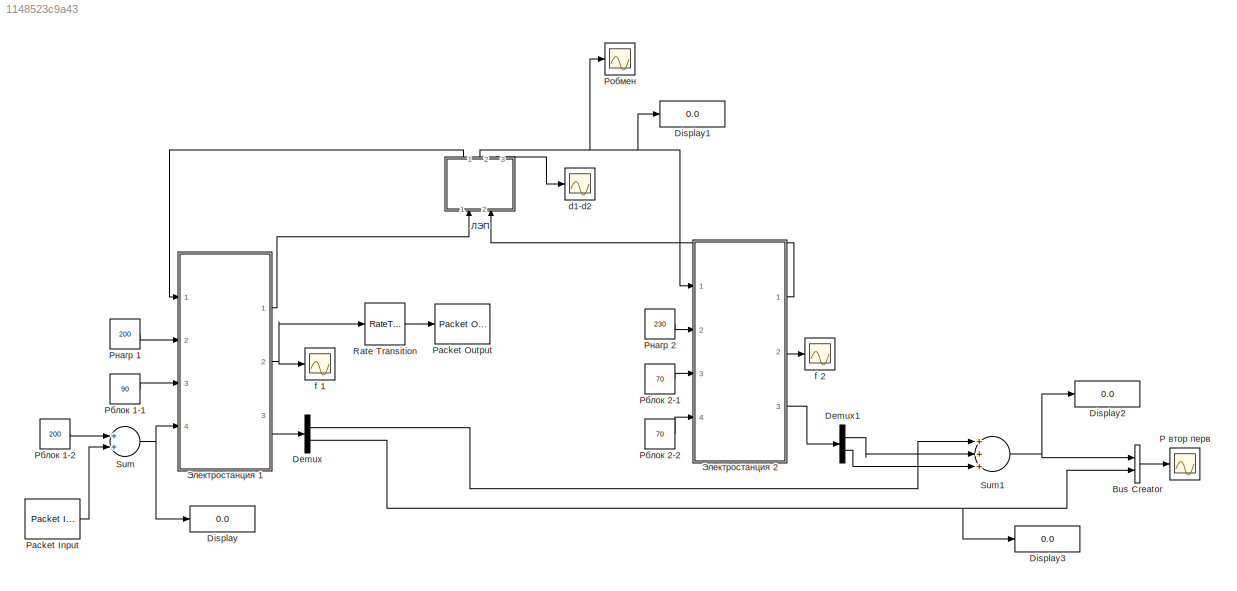
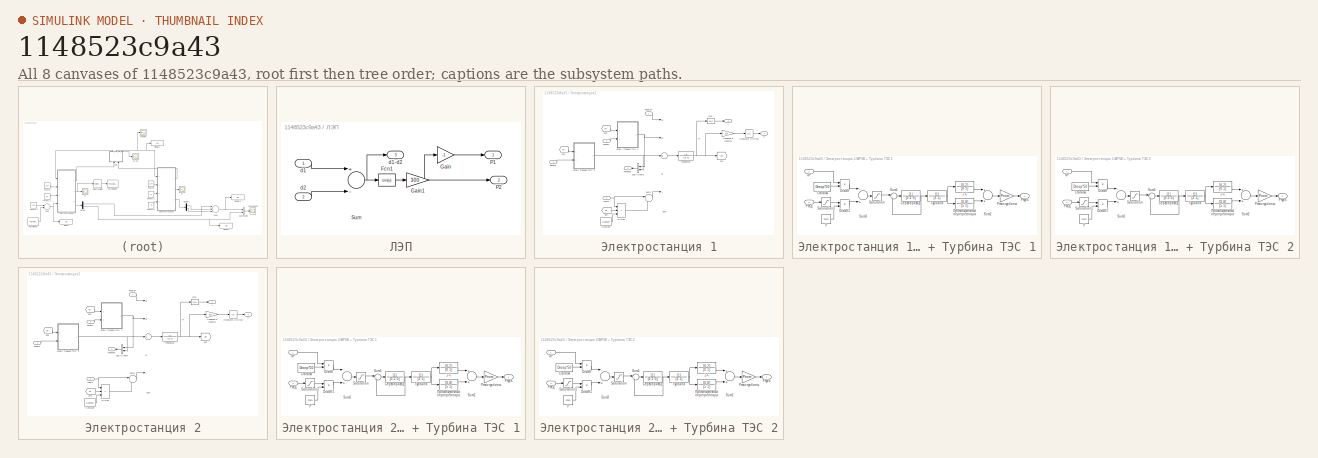
[diagram: thumbnail index - all 8 canvases of the model, root first then tree order]
MODEL slx_1148523c9a43
KIND model
CONFIG AbsTol = auto
CONFIG FixedStep = 0.01
CONFIG MaxStep = auto
CONFIG MinStep = auto
CONFIG RelTol = 1e-3
CONFIG SampleTimeConstraint = Unconstrained
CONFIG Solver = ode4
CONFIG SolverMode = Auto
CONFIG SolverName = ode4
CONFIG StartTime = 0.0
CONFIG StopTime = inf
BLOCK [BusCreator] Bus Creator
  DisplayOption = bar
  InheritFromInputs = on
  Inputs = 2
  Ports = [2, 1]
BLOCK [Demux] Demux
  DisplayOption = bar
  Outputs = 2
  Ports = [1, 2]
BLOCK [Demux] Demux1
  DisplayOption = bar
  Outputs = 2
  Ports = [1, 2]
BLOCK [Display] Display
  Decimation = 1
  Ports = [1]
BLOCK [Display] Display1
  Decimation = 1
  Ports = [1]
BLOCK [Display] Display2
  Decimation = 1
  Ports = [1]
BLOCK [Display] Display3
  Decimation = 1
  Ports = [1]
BLOCK [Scope] P втор перв
  Ports = [1]
  ScopeSpecificationString = Simulink.scopes.TimeScopeBlockCfg('CurrentConfiguration', extmgr.ConfigurationSet(extmgr.Configuration('Core','General UI',true),extmgr.Configuration('Core','Source UI',true),extmgr.Configuration('Sources','WiredSimulink',true,'DataLoggingVariableName','ScopeData1'),extmgr.Configuration('Visuals','Time Domain',true,'SerializedDisplays',{struct('MinYLimReal','169.2293','MaxYLimReal','244.84251','YL...<+1509ch>
BLOCK [Reference] Packet Input  REF=sldrtlib/Packet Input
  AttributesFormatString = Standard Devices\nUDP Protocol [2EE0h]
  Ports = [0, 1]
  SourceBlock = sldrtlib/Packet Input
  SourceType = Simulink Desktop Real-Time Packet Input
BLOCK [Reference] Packet Output  REF=sldrtlib/Packet Output
  AttributesFormatString = Standard Devices\nUDP Protocol [2EE0h]
  Ports = [1]
  SourceBlock = sldrtlib/Packet Output
  SourceType = Simulink Desktop Real-Time Packet Output
BLOCK [Constant] Pблок 1-1
  Value = 90
BLOCK [Constant] Pблок 1-2
  Value = 200
BLOCK [Constant] Pблок 2-1
  Value = 70
BLOCK [Constant] Pблок 2-2
  Value = 70
BLOCK [Constant] Pнагр 1
  Value = 200
BLOCK [Constant] Pнагр 2
  Value = 230
BLOCK [Scope] Pобмен
  Ports = [1]
  ScopeSpecificationString = Simulink.scopes.TimeScopeBlockCfg('CurrentConfiguration', extmgr.ConfigurationSet(extmgr.Configuration('Core','General UI',true),extmgr.Configuration('Core','Source UI',true),extmgr.Configuration('Sources','WiredSimulink',true,'DataLoggingVariableName','ScopeData5'),extmgr.Configuration('Visuals','Time Domain',true,'SerializedDisplays',{struct('MinYLimReal','-8.47412','MaxYLimReal','-8.05624','YLa...<+1492ch>
BLOCK [RateTransition] Rate Transition
  OutPortSampleTime = 1
BLOCK [Sum] Sum
  InputSameDT = off
  OutDataTypeStr = Inherit: Inherit via internal rule
  Ports = [2, 1]
  SaturateOnIntegerOverflow = off
BLOCK [Sum] Sum1
  InputSameDT = off
  Inputs = +++
  OutDataTypeStr = Inherit: Inherit via internal rule
  Ports = [3, 1]
  SaturateOnIntegerOverflow = off
BLOCK [Scope] d1-d2
  Ports = [1]
  ScopeSpecificationString = Simulink.scopes.TimeScopeBlockCfg('CurrentConfiguration', extmgr.ConfigurationSet(extmgr.Configuration('Core','General UI',true),extmgr.Configuration('Core','Source UI',true),extmgr.Configuration('Sources','WiredSimulink',true,'DataLoggingVariableName','ScopeData4'),extmgr.Configuration('Visuals','Time Domain',true,'SerializedDisplays',{struct('MinYLimReal','-0.8167','MaxYLimReal','7.05155','YLabe...<+1488ch>
BLOCK [Scope] f 1
  Ports = [1]
  ScopeSpecificationString = Simulink.scopes.TimeScopeBlockCfg('CurrentConfiguration', extmgr.ConfigurationSet(extmgr.Configuration('Core','General UI',true),extmgr.Configuration('Core','Source UI',true),extmgr.Configuration('Sources','WiredSimulink',true,'DataLoggingVariableName','ScopeData2'),extmgr.Configuration('Visuals','Time Domain',true,'SerializedDisplays',{struct('MinYLimReal','49.84426','MaxYLimReal','50.01644','YLa...<+1509ch>
BLOCK [Scope] f 2
  Ports = [1]
  ScopeSpecificationString = Simulink.scopes.TimeScopeBlockCfg('CurrentConfiguration', extmgr.ConfigurationSet(extmgr.Configuration('Core','General UI',true),extmgr.Configuration('Core','Source UI',true),extmgr.Configuration('Sources','WiredSimulink',true),extmgr.Configuration('Visuals','Time Domain',true,'SerializedDisplays',{struct('MinYLimReal','50.03023','MaxYLimReal','50.03885','YLabelReal','','MinYLimMag','50.03023','Ma...<+1470ch>
BLOCK [SubSystem] ЛЭП
  Ports = [2, 3]
  RequestExecContextInheritance = off
  Variant = off
BLOCK [Fcn] ЛЭП/Fcn1
  Expr = sin(u)
BLOCK [Gain] ЛЭП/Gain
  Gain = -1
  OutDataTypeStr = Inherit: Inherit via internal rule
  ParamDataTypeStr = Inherit: Inherit via internal rule
  SaturateOnIntegerOverflow = off
BLOCK [Gain] ЛЭП/Gain1
  Gain = 300
  OutDataTypeStr = Inherit: Inherit via internal rule
  ParamDataTypeStr = Inherit: Inherit via internal rule
  SaturateOnIntegerOverflow = off
BLOCK [Outport] ЛЭП/P1
  IconDisplay = Port number
BLOCK [Outport] ЛЭП/P2
  IconDisplay = Port number
  Port = 2
BLOCK [Sum] ЛЭП/Sum
  InputSameDT = off
  Inputs = +-
  OutDataTypeStr = Inherit: Inherit via internal rule
  Ports = [2, 1]
  SaturateOnIntegerOverflow = off
BLOCK [Inport] ЛЭП/d1
  IconDisplay = Port number
BLOCK [Outport] ЛЭП/d1-d2
  IconDisplay = Port number
  Port = 3
BLOCK [Inport] ЛЭП/d2
  IconDisplay = Port number
  Port = 2
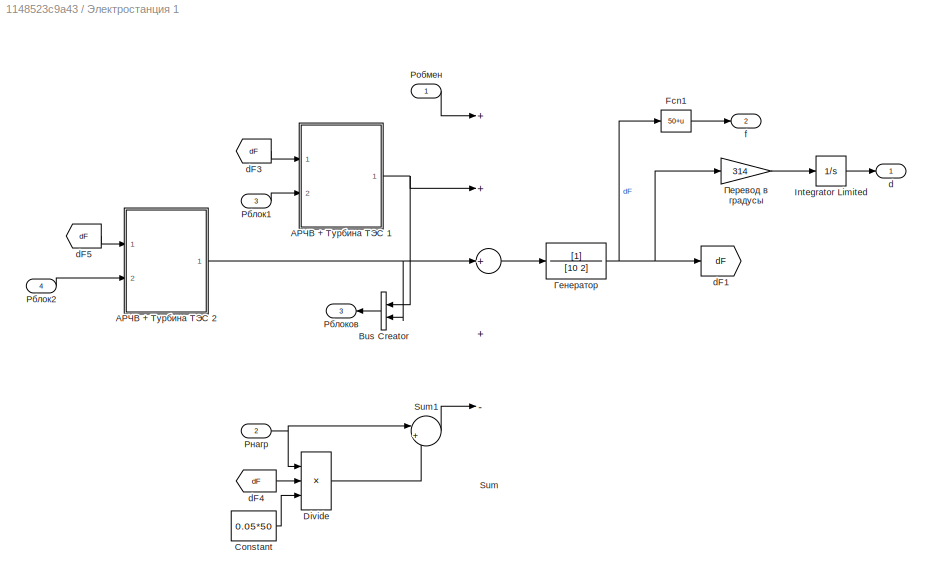
BLOCK [SubSystem] Электростанция 1
  Ports = [4, 3]
  RequestExecContextInheritance = off
  Variant = off
BLOCK [BusCreator] Электростанция 1/Bus Creator
  DisplayOption = bar
  InheritFromInputs = on
  Inputs = 2
  Ports = [2, 1]
BLOCK [Constant] Электростанция 1/Constant
  Value = 0.05*50
BLOCK [Product] Электростанция 1/Divide
  InputSameDT = off
  Inputs = **/
  OutDataTypeStr = Inherit: Inherit via internal rule
  Ports = [3, 1]
  RndMeth = Floor
  SaturateOnIntegerOverflow = off
BLOCK [Fcn] Электростанция 1/Fcn1
  Expr = 50+u
BLOCK [Integrator] Электростанция 1/Integrator Limited
  LowerSaturationLimit = -180
  Ports = [1, 1]
  UpperSaturationLimit = 180
  WrapState = on
BLOCK [Inport] Электростанция 1/Pблок1
  IconDisplay = Port number
  Port = 3
BLOCK [Inport] Электростанция 1/Pблок2
  IconDisplay = Port number
  Port = 4
BLOCK [Outport] Электростанция 1/Pблоков
  IconDisplay = Port number
  Port = 3
BLOCK [Inport] Электростанция 1/Pнагр
  IconDisplay = Port number
  Port = 2
BLOCK [Inport] Электростанция 1/Pобмен
  IconDisplay = Port number
BLOCK [Sum] Электростанция 1/Sum
  InputSameDT = off
  Inputs = ++++-
  OutDataTypeStr = Inherit: Inherit via internal rule
  Ports = [5, 1]
  SaturateOnIntegerOverflow = off
BLOCK [Sum] Электростанция 1/Sum1
  IconShape = round
  InputSameDT = off
  Inputs = |++
  OutDataTypeStr = Inherit: Inherit via internal rule
  Ports = [2, 1]
  SaturateOnIntegerOverflow = off
BLOCK [Outport] Электростанция 1/d
  IconDisplay = Port number
BLOCK [Goto] Электростанция 1/dF1
  GotoTag = dF
BLOCK [From] Электростанция 1/dF3
  GotoTag = dF
BLOCK [From] Электростанция 1/dF4
  GotoTag = dF
BLOCK [From] Электростанция 1/dF5
  GotoTag = dF
BLOCK [Outport] Электростанция 1/f
  IconDisplay = Port number
  Port = 2
BLOCK [SubSystem] Электростанция 1/АРЧВ + Турбина ТЭС 1
  Ports = [2, 1]
  RequestExecContextInheritance = off
  Variant = off
BLOCK [TransferFcn] Электростанция 1/АРЧВ + Турбина ТЭС 1/1-С
  Denominator = [0 1]
  Numerator = [0.2]
BLOCK [Product] Электростанция 1/АРЧВ + Турбина ТЭС 1/Divide
  InputSameDT = off
  Inputs = */
  OutDataTypeStr = Inherit: Inherit via internal rule
  Ports = [2, 1]
  RndMeth = Floor
  SaturateOnIntegerOverflow = off
BLOCK [Product] Электростанция 1/АРЧВ + Турбина ТЭС 1/Divide1
  InputSameDT = off
  Inputs = */
  OutDataTypeStr = Inherit: Inherit via internal rule
  Ports = [2, 1]
  RndMeth = Floor
  SaturateOnIntegerOverflow = off
BLOCK [Constant] Электростанция 1/АРЧВ + Турбина ТЭС 1/P
  Value = Pnom
BLOCK [Gain] Электростанция 1/АРЧВ + Турбина ТЭС 1/Pmax турбины
  Gain = Pnom
  OutDataTypeStr = Inherit: Inherit via internal rule
  ParamDataTypeStr = Inherit: Inherit via internal rule
  SaturateOnIntegerOverflow = off
BLOCK [Inport] Электростанция 1/АРЧВ + Турбина ТЭС 1/Pзад
  IconDisplay = Port number
  Port = 2
BLOCK [Outport] Электростанция 1/АРЧВ + Турбина ТЭС 1/Pтурб
  IconDisplay = Port number
BLOCK [Saturate] Электростанция 1/АРЧВ + Турбина ТЭС 1/Saturation
  InputPortMap = u0
  LowerLimit = 0
  Ports = [1, 1]
  UpperLimit = 1
BLOCK [Saturate] Электростанция 1/АРЧВ + Турбина ТЭС 1/Saturation1
  InputPortMap = u0
  LowerLimit = 0
  Ports = [1, 1]
  UpperLimit = Pnom
BLOCK [Sum] Электростанция 1/АРЧВ + Турбина ТЭС 1/Sum1
  IconShape = round
  InputSameDT = off
  Inputs = |+-
  OutDataTypeStr = Inherit: Inherit via internal rule
  Ports = [2, 1]
  SaturateOnIntegerOverflow = off
BLOCK [Sum] Электростанция 1/АРЧВ + Турбина ТЭС 1/Sum2
  InputSameDT = off
  OutDataTypeStr = Inherit: Inherit via internal rule
  Ports = [2, 1]
  SaturateOnIntegerOverflow = off
BLOCK [Sum] Электростанция 1/АРЧВ + Турбина ТЭС 1/Sum3
  InputSameDT = off
  Inputs = -+
  OutDataTypeStr = Inherit: Inherit via internal rule
  Ports = [2, 1]
  SaturateOnIntegerOverflow = off
BLOCK [Inport] Электростанция 1/АРЧВ + Турбина ТЭС 1/dF
  IconDisplay = Port number
BLOCK [TransferFcn] Электростанция 1/АРЧВ + Турбина ТЭС 1/Промежуточный перегрев пара
  Denominator = [5 1]
  Numerator = [0.8]
BLOCK [TransferFcn] Электростанция 1/АРЧВ + Турбина ТЭС 1/Сервопривод
  Denominator = [0.2 0]
BLOCK [Constant] Электростанция 1/АРЧВ + Турбина ТЭС 1/Статизм
  Value = Droop*50
BLOCK [TransferFcn] Электростанция 1/АРЧВ + Турбина ТЭС 1/Турбина
  Denominator = [3 1]
BLOCK [SubSystem] Электростанция 1/АРЧВ + Турбина ТЭС 2
  Ports = [2, 1]
  RequestExecContextInheritance = off
  Variant = off
BLOCK [TransferFcn] Электростанция 1/АРЧВ + Турбина ТЭС 2/1-С
  Denominator = [0 1]
  Numerator = [0.2]
BLOCK [Product] Электростанция 1/АРЧВ + Турбина ТЭС 2/Divide
  InputSameDT = off
  Inputs = */
  OutDataTypeStr = Inherit: Inherit via internal rule
  Ports = [2, 1]
  RndMeth = Floor
  SaturateOnIntegerOverflow = off
BLOCK [Product] Электростанция 1/АРЧВ + Турбина ТЭС 2/Divide1
  InputSameDT = off
  Inputs = */
  OutDataTypeStr = Inherit: Inherit via internal rule
  Ports = [2, 1]
  RndMeth = Floor
  SaturateOnIntegerOverflow = off
BLOCK [Constant] Электростанция 1/АРЧВ + Турбина ТЭС 2/P
  Value = Pnom
BLOCK [Gain] Электростанция 1/АРЧВ + Турбина ТЭС 2/Pmax турбины
  Gain = Pnom
  OutDataTypeStr = Inherit: Inherit via internal rule
  ParamDataTypeStr = Inherit: Inherit via internal rule
  SaturateOnIntegerOverflow = off
BLOCK [Inport] Электростанция 1/АРЧВ + Турбина ТЭС 2/Pзад
  IconDisplay = Port number
  Port = 2
BLOCK [Outport] Электростанция 1/АРЧВ + Турбина ТЭС 2/Pтурб
  IconDisplay = Port number
BLOCK [Saturate] Электростанция 1/АРЧВ + Турбина ТЭС 2/Saturation
  InputPortMap = u0
  LowerLimit = 0
  Ports = [1, 1]
  UpperLimit = 1
BLOCK [Saturate] Электростанция 1/АРЧВ + Турбина ТЭС 2/Saturation1
  InputPortMap = u0
  LowerLimit = 0
  Ports = [1, 1]
  UpperLimit = Pnom
BLOCK [Sum] Электростанция 1/АРЧВ + Турбина ТЭС 2/Sum1
  IconShape = round
  InputSameDT = off
  Inputs = |+-
  OutDataTypeStr = Inherit: Inherit via internal rule
  Ports = [2, 1]
  SaturateOnIntegerOverflow = off
BLOCK [Sum] Электростанция 1/АРЧВ + Турбина ТЭС 2/Sum2
  InputSameDT = off
  OutDataTypeStr = Inherit: Inherit via internal rule
  Ports = [2, 1]
  SaturateOnIntegerOverflow = off
BLOCK [Sum] Электростанция 1/АРЧВ + Турбина ТЭС 2/Sum3
  InputSameDT = off
  Inputs = -+
  OutDataTypeStr = Inherit: Inherit via internal rule
  Ports = [2, 1]
  SaturateOnIntegerOverflow = off
BLOCK [Inport] Электростанция 1/АРЧВ + Турбина ТЭС 2/dF
  IconDisplay = Port number
BLOCK [TransferFcn] Электростанция 1/АРЧВ + Турбина ТЭС 2/Промежуточный перегрев пара
  Denominator = [5 1]
  Numerator = [0.8]
BLOCK [TransferFcn] Электростанция 1/АРЧВ + Турбина ТЭС 2/Сервопривод
  Denominator = [0.2 0]
BLOCK [Constant] Электростанция 1/АРЧВ + Турбина ТЭС 2/Статизм
  Value = Droop*50
BLOCK [TransferFcn] Электростанция 1/АРЧВ + Турбина ТЭС 2/Турбина
  Denominator = [3 1]
BLOCK [TransferFcn] Электростанция 1/Генератор
  Denominator = [10 2]
BLOCK [Gain] Электростанция 1/Перевод в градусы
  Gain = 314
  OutDataTypeStr = Inherit: Inherit via internal rule
  ParamDataTypeStr = Inherit: Inherit via internal rule
  SaturateOnIntegerOverflow = off
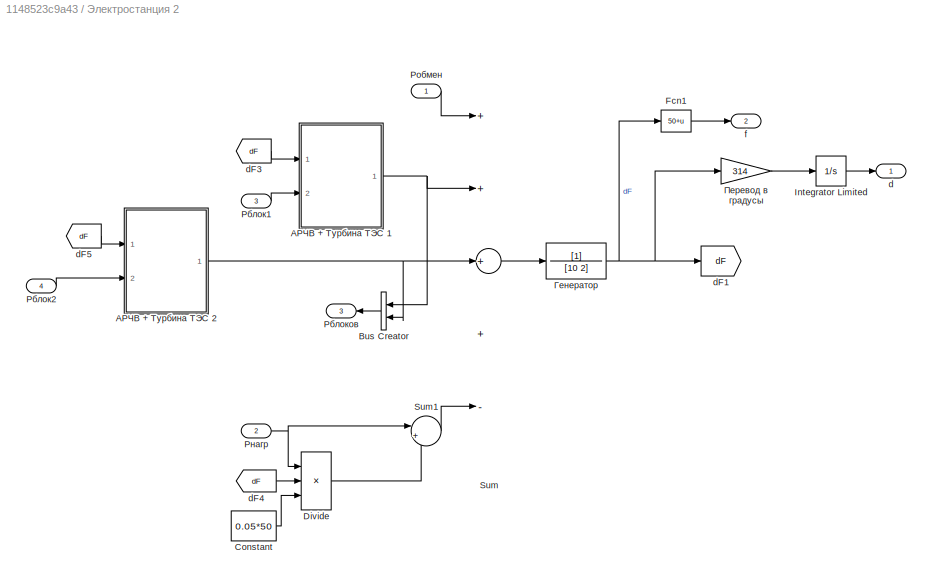
BLOCK [SubSystem] Электростанция 2
  Ports = [4, 3]
  RequestExecContextInheritance = off
  Variant = off
BLOCK [BusCreator] Электростанция 2/Bus Creator
  DisplayOption = bar
  InheritFromInputs = on
  Inputs = 2
  Ports = [2, 1]
BLOCK [Constant] Электростанция 2/Constant
  Value = 0.05*50
BLOCK [Product] Электростанция 2/Divide
  InputSameDT = off
  Inputs = **/
  OutDataTypeStr = Inherit: Inherit via internal rule
  Ports = [3, 1]
  RndMeth = Floor
  SaturateOnIntegerOverflow = off
BLOCK [Fcn] Электростанция 2/Fcn1
  Expr = 50+u
BLOCK [Integrator] Электростанция 2/Integrator Limited
  LowerSaturationLimit = -180
  Ports = [1, 1]
  UpperSaturationLimit = 180
  WrapState = on
BLOCK [Inport] Электростанция 2/Pблок1
  IconDisplay = Port number
  Port = 3
BLOCK [Inport] Электростанция 2/Pблок2
  IconDisplay = Port number
  Port = 4
BLOCK [Outport] Электростанция 2/Pблоков
  IconDisplay = Port number
  Port = 3
BLOCK [Inport] Электростанция 2/Pнагр
  IconDisplay = Port number
  Port = 2
BLOCK [Inport] Электростанция 2/Pобмен
  IconDisplay = Port number
BLOCK [Sum] Электростанция 2/Sum
  InputSameDT = off
  Inputs = ++++-
  OutDataTypeStr = Inherit: Inherit via internal rule
  Ports = [5, 1]
  SaturateOnIntegerOverflow = off
BLOCK [Sum] Электростанция 2/Sum1
  IconShape = round
  InputSameDT = off
  Inputs = |++
  OutDataTypeStr = Inherit: Inherit via internal rule
  Ports = [2, 1]
  SaturateOnIntegerOverflow = off
BLOCK [Outport] Электростанция 2/d
  IconDisplay = Port number
BLOCK [Goto] Электростанция 2/dF1
  GotoTag = dF
BLOCK [From] Электростанция 2/dF3
  GotoTag = dF
BLOCK [From] Электростанция 2/dF4
  GotoTag = dF
BLOCK [From] Электростанция 2/dF5
  GotoTag = dF
BLOCK [Outport] Электростанция 2/f
  IconDisplay = Port number
  Port = 2
BLOCK [SubSystem] Электростанция 2/АРЧВ + Турбина ТЭС 1
  Ports = [2, 1]
  RequestExecContextInheritance = off
  Variant = off
BLOCK [TransferFcn] Электростанция 2/АРЧВ + Турбина ТЭС 1/1-С
  Denominator = [0 1]
  Numerator = [0.2]
BLOCK [Product] Электростанция 2/АРЧВ + Турбина ТЭС 1/Divide
  InputSameDT = off
  Inputs = */
  OutDataTypeStr = Inherit: Inherit via internal rule
  Ports = [2, 1]
  RndMeth = Floor
  SaturateOnIntegerOverflow = off
BLOCK [Product] Электростанция 2/АРЧВ + Турбина ТЭС 1/Divide1
  InputSameDT = off
  Inputs = */
  OutDataTypeStr = Inherit: Inherit via internal rule
  Ports = [2, 1]
  RndMeth = Floor
  SaturateOnIntegerOverflow = off
BLOCK [Constant] Электростанция 2/АРЧВ + Турбина ТЭС 1/P
  Value = Pnom
BLOCK [Gain] Электростанция 2/АРЧВ + Турбина ТЭС 1/Pmax турбины
  Gain = Pnom
  OutDataTypeStr = Inherit: Inherit via internal rule
  ParamDataTypeStr = Inherit: Inherit via internal rule
  SaturateOnIntegerOverflow = off
BLOCK [Inport] Электростанция 2/АРЧВ + Турбина ТЭС 1/Pзад
  IconDisplay = Port number
  Port = 2
BLOCK [Outport] Электростанция 2/АРЧВ + Турбина ТЭС 1/Pтурб
  IconDisplay = Port number
BLOCK [Saturate] Электростанция 2/АРЧВ + Турбина ТЭС 1/Saturation
  InputPortMap = u0
  LowerLimit = 0
  Ports = [1, 1]
  UpperLimit = 1
BLOCK [Saturate] Электростанция 2/АРЧВ + Турбина ТЭС 1/Saturation1
  InputPortMap = u0
  LowerLimit = 0
  Ports = [1, 1]
  UpperLimit = Pnom
BLOCK [Sum] Электростанция 2/АРЧВ + Турбина ТЭС 1/Sum1
  IconShape = round
  InputSameDT = off
  Inputs = |+-
  OutDataTypeStr = Inherit: Inherit via internal rule
  Ports = [2, 1]
  SaturateOnIntegerOverflow = off
BLOCK [Sum] Электростанция 2/АРЧВ + Турбина ТЭС 1/Sum2
  InputSameDT = off
  OutDataTypeStr = Inherit: Inherit via internal rule
  Ports = [2, 1]
  SaturateOnIntegerOverflow = off
BLOCK [Sum] Электростанция 2/АРЧВ + Турбина ТЭС 1/Sum3
  InputSameDT = off
  Inputs = -+
  OutDataTypeStr = Inherit: Inherit via internal rule
  Ports = [2, 1]
  SaturateOnIntegerOverflow = off
BLOCK [Inport] Электростанция 2/АРЧВ + Турбина ТЭС 1/dF
  IconDisplay = Port number
BLOCK [TransferFcn] Электростанция 2/АРЧВ + Турбина ТЭС 1/Промежуточный перегрев пара
  Denominator = [5 1]
  Numerator = [0.8]
BLOCK [TransferFcn] Электростанция 2/АРЧВ + Турбина ТЭС 1/Сервопривод
  Denominator = [0.2 0]
BLOCK [Constant] Электростанция 2/АРЧВ + Турбина ТЭС 1/Статизм
  Value = Droop*50
BLOCK [TransferFcn] Электростанция 2/АРЧВ + Турбина ТЭС 1/Турбина
  Denominator = [3 1]
BLOCK [SubSystem] Электростанция 2/АРЧВ + Турбина ТЭС 2
  Ports = [2, 1]
  RequestExecContextInheritance = off
  Variant = off
BLOCK [TransferFcn] Электростанция 2/АРЧВ + Турбина ТЭС 2/1-С
  Denominator = [0 1]
  Numerator = [0.2]
BLOCK [Product] Электростанция 2/АРЧВ + Турбина ТЭС 2/Divide
  InputSameDT = off
  Inputs = */
  OutDataTypeStr = Inherit: Inherit via internal rule
  Ports = [2, 1]
  RndMeth = Floor
  SaturateOnIntegerOverflow = off
BLOCK [Product] Электростанция 2/АРЧВ + Турбина ТЭС 2/Divide1
  InputSameDT = off
  Inputs = */
  OutDataTypeStr = Inherit: Inherit via internal rule
  Ports = [2, 1]
  RndMeth = Floor
  SaturateOnIntegerOverflow = off
BLOCK [Constant] Электростанция 2/АРЧВ + Турбина ТЭС 2/P
  Value = Pnom
BLOCK [Gain] Электростанция 2/АРЧВ + Турбина ТЭС 2/Pmax турбины
  Gain = Pnom
  OutDataTypeStr = Inherit: Inherit via internal rule
  ParamDataTypeStr = Inherit: Inherit via internal rule
  SaturateOnIntegerOverflow = off
BLOCK [Inport] Электростанция 2/АРЧВ + Турбина ТЭС 2/Pзад
  IconDisplay = Port number
  Port = 2
BLOCK [Outport] Электростанция 2/АРЧВ + Турбина ТЭС 2/Pтурб
  IconDisplay = Port number
BLOCK [Saturate] Электростанция 2/АРЧВ + Турбина ТЭС 2/Saturation
  InputPortMap = u0
  LowerLimit = 0
  Ports = [1, 1]
  UpperLimit = 1
BLOCK [Saturate] Электростанция 2/АРЧВ + Турбина ТЭС 2/Saturation1
  InputPortMap = u0
  LowerLimit = 0
  Ports = [1, 1]
  UpperLimit = Pnom
BLOCK [Sum] Электростанция 2/АРЧВ + Турбина ТЭС 2/Sum1
  IconShape = round
  InputSameDT = off
  Inputs = |+-
  OutDataTypeStr = Inherit: Inherit via internal rule
  Ports = [2, 1]
  SaturateOnIntegerOverflow = off
BLOCK [Sum] Электростанция 2/АРЧВ + Турбина ТЭС 2/Sum2
  InputSameDT = off
  OutDataTypeStr = Inherit: Inherit via internal rule
  Ports = [2, 1]
  SaturateOnIntegerOverflow = off
BLOCK [Sum] Электростанция 2/АРЧВ + Турбина ТЭС 2/Sum3
  InputSameDT = off
  Inputs = -+
  OutDataTypeStr = Inherit: Inherit via internal rule
  Ports = [2, 1]
  SaturateOnIntegerOverflow = off
BLOCK [Inport] Электростанция 2/АРЧВ + Турбина ТЭС 2/dF
  IconDisplay = Port number
BLOCK [TransferFcn] Электростанция 2/АРЧВ + Турбина ТЭС 2/Промежуточный перегрев пара
  Denominator = [5 1]
  Numerator = [0.8]
BLOCK [TransferFcn] Электростанция 2/АРЧВ + Турбина ТЭС 2/Сервопривод
  Denominator = [0.2 0]
BLOCK [Constant] Электростанция 2/АРЧВ + Турбина ТЭС 2/Статизм
  Value = Droop*50
BLOCK [TransferFcn] Электростанция 2/АРЧВ + Турбина ТЭС 2/Турбина
  Denominator = [3 1]
BLOCK [TransferFcn] Электростанция 2/Генератор
  Denominator = [10 2]
BLOCK [Gain] Электростанция 2/Перевод в градусы
  Gain = 314
  OutDataTypeStr = Inherit: Inherit via internal rule
  ParamDataTypeStr = Inherit: Inherit via internal rule
  SaturateOnIntegerOverflow = off
LINE Bus Creator:1 -> P втор перв:1
LINE Demux1:1 -> Sum1:2
LINE Demux1:2 -> Sum1:3
LINE Demux:1 -> Sum1:1
NET Demux:2 -> Bus Creator:2, Display3:1
LINE Packet Input:1 -> Sum:2
LINE Pблок 1-1:1 -> Электростанция 1:3
LINE Pблок 1-2:1 -> Sum:1
LINE Pблок 2-1:1 -> Электростанция 2:3
LINE Pблок 2-2:1 -> Электростанция 2:4
LINE Pнагр 1:1 -> Электростанция 1:2
LINE Pнагр 2:1 -> Электростанция 2:2
LINE Rate Transition:1 -> Packet Output:1
NET Sum1:1 -> Bus Creator:1, Display2:1
NET Sum:1 -> Display:1, Электростанция 1:4
LINE ЛЭП/Fcn1:1 -> ЛЭП/Gain1:1
NET ЛЭП/Gain1:1 -> ЛЭП/Gain:1, ЛЭП/P2:1
LINE ЛЭП/Gain:1 -> ЛЭП/P1:1
NET ЛЭП/Sum:1 -> ЛЭП/Fcn1:1, ЛЭП/d1-d2:1
LINE ЛЭП/d1:1 -> ЛЭП/Sum:1
LINE ЛЭП/d2:1 -> ЛЭП/Sum:2
LINE ЛЭП:1 -> Электростанция 1:1
NET ЛЭП:2 -> Display1:1, Pобмен:1, Электростанция 2:1
LINE ЛЭП:3 -> d1-d2:1
LINE Электростанция 1/Bus Creator:1 -> Электростанция 1/Pблоков:1
LINE Электростанция 1/Constant:1 -> Электростанция 1/Divide:3
LINE Электростанция 1/Divide:1 -> Электростанция 1/Sum1:2
LINE Электростанция 1/Fcn1:1 -> Электростанция 1/f:1
LINE Электростанция 1/Integrator Limited:1 -> Электростанция 1/d:1
LINE Электростанция 1/Pблок1:1 -> Электростанция 1/АРЧВ + Турбина ТЭС 1:2
LINE Электростанция 1/Pблок2:1 -> Электростанция 1/АРЧВ + Турбина ТЭС 2:2
NET Электростанция 1/Pнагр:1 -> Электростанция 1/Divide:1, Электростанция 1/Sum1:1
LINE Электростанция 1/Pобмен:1 -> Электростанция 1/Sum:1
LINE Электростанция 1/Sum1:1 -> Электростанция 1/Sum:5
LINE Электростанция 1/Sum:1 -> Электростанция 1/Генератор:1
LINE Электростанция 1/dF3:1 -> Электростанция 1/АРЧВ + Турбина ТЭС 1:1
LINE Электростанция 1/dF4:1 -> Электростанция 1/Divide:2
LINE Электростанция 1/dF5:1 -> Электростанция 1/АРЧВ + Турбина ТЭС 2:1
LINE Электростанция 1/АРЧВ + Турбина ТЭС 1/1-С:1 -> Электростанция 1/АРЧВ + Турбина ТЭС 1/Sum2:1
LINE Электростанция 1/АРЧВ + Турбина ТЭС 1/Divide1:1 -> Электростанция 1/АРЧВ + Турбина ТЭС 1/Sum3:2
LINE Электростанция 1/АРЧВ + Турбина ТЭС 1/Divide:1 -> Электростанция 1/АРЧВ + Турбина ТЭС 1/Sum3:1
LINE Электростанция 1/АРЧВ + Турбина ТЭС 1/P:1 -> Электростанция 1/АРЧВ + Турбина ТЭС 1/Divide1:2
LINE Электростанция 1/АРЧВ + Турбина ТЭС 1/Pmax турбины:1 -> Электростанция 1/АРЧВ + Турбина ТЭС 1/Pтурб:1
LINE Электростанция 1/АРЧВ + Турбина ТЭС 1/Pзад:1 -> Электростанция 1/АРЧВ + Турбина ТЭС 1/Saturation1:1
LINE Электростанция 1/АРЧВ + Турбина ТЭС 1/Saturation1:1 -> Электростанция 1/АРЧВ + Турбина ТЭС 1/Divide1:1
LINE Электростанция 1/АРЧВ + Турбина ТЭС 1/Saturation:1 -> Электростанция 1/АРЧВ + Турбина ТЭС 1/Sum1:1
LINE Электростанция 1/АРЧВ + Турбина ТЭС 1/Sum1:1 -> Электростанция 1/АРЧВ + Турбина ТЭС 1/Сервопривод:1
LINE Электростанция 1/АРЧВ + Турбина ТЭС 1/Sum2:1 -> Электростанция 1/АРЧВ + Турбина ТЭС 1/Pmax турбины:1
LINE Электростанция 1/АРЧВ + Турбина ТЭС 1/Sum3:1 -> Электростанция 1/АРЧВ + Турбина ТЭС 1/Saturation:1
LINE Электростанция 1/АРЧВ + Турбина ТЭС 1/dF:1 -> Электростанция 1/АРЧВ + Турбина ТЭС 1/Divide:1
LINE Электростанция 1/АРЧВ + Турбина ТЭС 1/Промежуточный перегрев пара:1 -> Электростанция 1/АРЧВ + Турбина ТЭС 1/Sum2:2
NET Электростанция 1/АРЧВ + Турбина ТЭС 1/Сервопривод:1 -> Электростанция 1/АРЧВ + Турбина ТЭС 1/Sum1:2, Электростанция 1/АРЧВ + Турбина ТЭС 1/Турбина:1
LINE Электростанция 1/АРЧВ + Турбина ТЭС 1/Статизм:1 -> Электростанция 1/АРЧВ + Турбина ТЭС 1/Divide:2
NET Электростанция 1/АРЧВ + Турбина ТЭС 1/Турбина:1 -> Электростанция 1/АРЧВ + Турбина ТЭС 1/1-С:1, Электростанция 1/АРЧВ + Турбина ТЭС 1/Промежуточный перегрев пара:1
NET Электростанция 1/АРЧВ + Турбина ТЭС 1:1 -> Электростанция 1/Bus Creator:1, Электростанция 1/Sum:2
LINE Электростанция 1/АРЧВ + Турбина ТЭС 2/1-С:1 -> Электростанция 1/АРЧВ + Турбина ТЭС 2/Sum2:1
LINE Электростанция 1/АРЧВ + Турбина ТЭС 2/Divide1:1 -> Электростанция 1/АРЧВ + Турбина ТЭС 2/Sum3:2
LINE Электростанция 1/АРЧВ + Турбина ТЭС 2/Divide:1 -> Электростанция 1/АРЧВ + Турбина ТЭС 2/Sum3:1
LINE Электростанция 1/АРЧВ + Турбина ТЭС 2/P:1 -> Электростанция 1/АРЧВ + Турбина ТЭС 2/Divide1:2
LINE Электростанция 1/АРЧВ + Турбина ТЭС 2/Pmax турбины:1 -> Электростанция 1/АРЧВ + Турбина ТЭС 2/Pтурб:1
LINE Электростанция 1/АРЧВ + Турбина ТЭС 2/Pзад:1 -> Электростанция 1/АРЧВ + Турбина ТЭС 2/Saturation1:1
LINE Электростанция 1/АРЧВ + Турбина ТЭС 2/Saturation1:1 -> Электростанция 1/АРЧВ + Турбина ТЭС 2/Divide1:1
LINE Электростанция 1/АРЧВ + Турбина ТЭС 2/Saturation:1 -> Электростанция 1/АРЧВ + Турбина ТЭС 2/Sum1:1
LINE Электростанция 1/АРЧВ + Турбина ТЭС 2/Sum1:1 -> Электростанция 1/АРЧВ + Турбина ТЭС 2/Сервопривод:1
LINE Электростанция 1/АРЧВ + Турбина ТЭС 2/Sum2:1 -> Электростанция 1/АРЧВ + Турбина ТЭС 2/Pmax турбины:1
LINE Электростанция 1/АРЧВ + Турбина ТЭС 2/Sum3:1 -> Электростанция 1/АРЧВ + Турбина ТЭС 2/Saturation:1
LINE Электростанция 1/АРЧВ + Турбина ТЭС 2/dF:1 -> Электростанция 1/АРЧВ + Турбина ТЭС 2/Divide:1
LINE Электростанция 1/АРЧВ + Турбина ТЭС 2/Промежуточный перегрев пара:1 -> Электростанция 1/АРЧВ + Турбина ТЭС 2/Sum2:2
NET Электростанция 1/АРЧВ + Турбина ТЭС 2/Сервопривод:1 -> Электростанция 1/АРЧВ + Турбина ТЭС 2/Sum1:2, Электростанция 1/АРЧВ + Турбина ТЭС 2/Турбина:1
LINE Электростанция 1/АРЧВ + Турбина ТЭС 2/Статизм:1 -> Электростанция 1/АРЧВ + Турбина ТЭС 2/Divide:2
NET Электростанция 1/АРЧВ + Турбина ТЭС 2/Турбина:1 -> Электростанция 1/АРЧВ + Турбина ТЭС 2/1-С:1, Электростанция 1/АРЧВ + Турбина ТЭС 2/Промежуточный перегрев пара:1
NET Электростанция 1/АРЧВ + Турбина ТЭС 2:1 -> Электростанция 1/Bus Creator:2, Электростанция 1/Sum:3
NET Электростанция 1/Генератор:1 -> Электростанция 1/Fcn1:1, Электростанция 1/dF1:1, Электростанция 1/Перевод в градусы:1
LINE Электростанция 1/Перевод в градусы:1 -> Электростанция 1/Integrator Limited:1
LINE Электростанция 1:1 -> ЛЭП:1
NET Электростанция 1:2 -> Rate Transition:1, f 1:1
LINE Электростанция 1:3 -> Demux:1
LINE Электростанция 2/Bus Creator:1 -> Электростанция 2/Pблоков:1
LINE Электростанция 2/Constant:1 -> Электростанция 2/Divide:3
LINE Электростанция 2/Divide:1 -> Электростанция 2/Sum1:2
LINE Электростанция 2/Fcn1:1 -> Электростанция 2/f:1
LINE Электростанция 2/Integrator Limited:1 -> Электростанция 2/d:1
LINE Электростанция 2/Pблок1:1 -> Электростанция 2/АРЧВ + Турбина ТЭС 1:2
LINE Электростанция 2/Pблок2:1 -> Электростанция 2/АРЧВ + Турбина ТЭС 2:2
NET Электростанция 2/Pнагр:1 -> Электростанция 2/Divide:1, Электростанция 2/Sum1:1
LINE Электростанция 2/Pобмен:1 -> Электростанция 2/Sum:1
LINE Электростанция 2/Sum1:1 -> Электростанция 2/Sum:5
LINE Электростанция 2/Sum:1 -> Электростанция 2/Генератор:1
LINE Электростанция 2/dF3:1 -> Электростанция 2/АРЧВ + Турбина ТЭС 1:1
LINE Электростанция 2/dF4:1 -> Электростанция 2/Divide:2
LINE Электростанция 2/dF5:1 -> Электростанция 2/АРЧВ + Турбина ТЭС 2:1
LINE Электростанция 2/АРЧВ + Турбина ТЭС 1/1-С:1 -> Электростанция 2/АРЧВ + Турбина ТЭС 1/Sum2:1
LINE Электростанция 2/АРЧВ + Турбина ТЭС 1/Divide1:1 -> Электростанция 2/АРЧВ + Турбина ТЭС 1/Sum3:2
LINE Электростанция 2/АРЧВ + Турбина ТЭС 1/Divide:1 -> Электростанция 2/АРЧВ + Турбина ТЭС 1/Sum3:1
LINE Электростанция 2/АРЧВ + Турбина ТЭС 1/P:1 -> Электростанция 2/АРЧВ + Турбина ТЭС 1/Divide1:2
LINE Электростанция 2/АРЧВ + Турбина ТЭС 1/Pmax турбины:1 -> Электростанция 2/АРЧВ + Турбина ТЭС 1/Pтурб:1
LINE Электростанция 2/АРЧВ + Турбина ТЭС 1/Pзад:1 -> Электростанция 2/АРЧВ + Турбина ТЭС 1/Saturation1:1
LINE Электростанция 2/АРЧВ + Турбина ТЭС 1/Saturation1:1 -> Электростанция 2/АРЧВ + Турбина ТЭС 1/Divide1:1
LINE Электростанция 2/АРЧВ + Турбина ТЭС 1/Saturation:1 -> Электростанция 2/АРЧВ + Турбина ТЭС 1/Sum1:1
LINE Электростанция 2/АРЧВ + Турбина ТЭС 1/Sum1:1 -> Электростанция 2/АРЧВ + Турбина ТЭС 1/Сервопривод:1
LINE Электростанция 2/АРЧВ + Турбина ТЭС 1/Sum2:1 -> Электростанция 2/АРЧВ + Турбина ТЭС 1/Pmax турбины:1
LINE Электростанция 2/АРЧВ + Турбина ТЭС 1/Sum3:1 -> Электростанция 2/АРЧВ + Турбина ТЭС 1/Saturation:1
LINE Электростанция 2/АРЧВ + Турбина ТЭС 1/dF:1 -> Электростанция 2/АРЧВ + Турбина ТЭС 1/Divide:1
LINE Электростанция 2/АРЧВ + Турбина ТЭС 1/Промежуточный перегрев пара:1 -> Электростанция 2/АРЧВ + Турбина ТЭС 1/Sum2:2
NET Электростанция 2/АРЧВ + Турбина ТЭС 1/Сервопривод:1 -> Электростанция 2/АРЧВ + Турбина ТЭС 1/Sum1:2, Электростанция 2/АРЧВ + Турбина ТЭС 1/Турбина:1
LINE Электростанция 2/АРЧВ + Турбина ТЭС 1/Статизм:1 -> Электростанция 2/АРЧВ + Турбина ТЭС 1/Divide:2
NET Электростанция 2/АРЧВ + Турбина ТЭС 1/Турбина:1 -> Электростанция 2/АРЧВ + Турбина ТЭС 1/1-С:1, Электростанция 2/АРЧВ + Турбина ТЭС 1/Промежуточный перегрев пара:1
NET Электростанция 2/АРЧВ + Турбина ТЭС 1:1 -> Электростанция 2/Bus Creator:1, Электростанция 2/Sum:2
LINE Электростанция 2/АРЧВ + Турбина ТЭС 2/1-С:1 -> Электростанция 2/АРЧВ + Турбина ТЭС 2/Sum2:1
LINE Электростанция 2/АРЧВ + Турбина ТЭС 2/Divide1:1 -> Электростанция 2/АРЧВ + Турбина ТЭС 2/Sum3:2
LINE Электростанция 2/АРЧВ + Турбина ТЭС 2/Divide:1 -> Электростанция 2/АРЧВ + Турбина ТЭС 2/Sum3:1
LINE Электростанция 2/АРЧВ + Турбина ТЭС 2/P:1 -> Электростанция 2/АРЧВ + Турбина ТЭС 2/Divide1:2
LINE Электростанция 2/АРЧВ + Турбина ТЭС 2/Pmax турбины:1 -> Электростанция 2/АРЧВ + Турбина ТЭС 2/Pтурб:1
LINE Электростанция 2/АРЧВ + Турбина ТЭС 2/Pзад:1 -> Электростанция 2/АРЧВ + Турбина ТЭС 2/Saturation1:1
LINE Электростанция 2/АРЧВ + Турбина ТЭС 2/Saturation1:1 -> Электростанция 2/АРЧВ + Турбина ТЭС 2/Divide1:1
LINE Электростанция 2/АРЧВ + Турбина ТЭС 2/Saturation:1 -> Электростанция 2/АРЧВ + Турбина ТЭС 2/Sum1:1
LINE Электростанция 2/АРЧВ + Турбина ТЭС 2/Sum1:1 -> Электростанция 2/АРЧВ + Турбина ТЭС 2/Сервопривод:1
LINE Электростанция 2/АРЧВ + Турбина ТЭС 2/Sum2:1 -> Электростанция 2/АРЧВ + Турбина ТЭС 2/Pmax турбины:1
LINE Электростанция 2/АРЧВ + Турбина ТЭС 2/Sum3:1 -> Электростанция 2/АРЧВ + Турбина ТЭС 2/Saturation:1
LINE Электростанция 2/АРЧВ + Турбина ТЭС 2/dF:1 -> Электростанция 2/АРЧВ + Турбина ТЭС 2/Divide:1
LINE Электростанция 2/АРЧВ + Турбина ТЭС 2/Промежуточный перегрев пара:1 -> Электростанция 2/АРЧВ + Турбина ТЭС 2/Sum2:2
NET Электростанция 2/АРЧВ + Турбина ТЭС 2/Сервопривод:1 -> Электростанция 2/АРЧВ + Турбина ТЭС 2/Sum1:2, Электростанция 2/АРЧВ + Турбина ТЭС 2/Турбина:1
LINE Электростанция 2/АРЧВ + Турбина ТЭС 2/Статизм:1 -> Электростанция 2/АРЧВ + Турбина ТЭС 2/Divide:2
NET Электростанция 2/АРЧВ + Турбина ТЭС 2/Турбина:1 -> Электростанция 2/АРЧВ + Турбина ТЭС 2/1-С:1, Электростанция 2/АРЧВ + Турбина ТЭС 2/Промежуточный перегрев пара:1
NET Электростанция 2/АРЧВ + Турбина ТЭС 2:1 -> Электростанция 2/Bus Creator:2, Электростанция 2/Sum:3
NET Электростанция 2/Генератор:1 -> Электростанция 2/Fcn1:1, Электростанция 2/dF1:1, Электростанция 2/Перевод в градусы:1
LINE Электростанция 2/Перевод в градусы:1 -> Электростанция 2/Integrator Limited:1
LINE Электростанция 2:1 -> ЛЭП:2
LINE Электростанция 2:2 -> f 2:1
LINE Электростанция 2:3 -> Demux1:1
note: NET lines group one-source signal fan-out (src -> all destinations, sorted); 1:1 wires keep LINE
